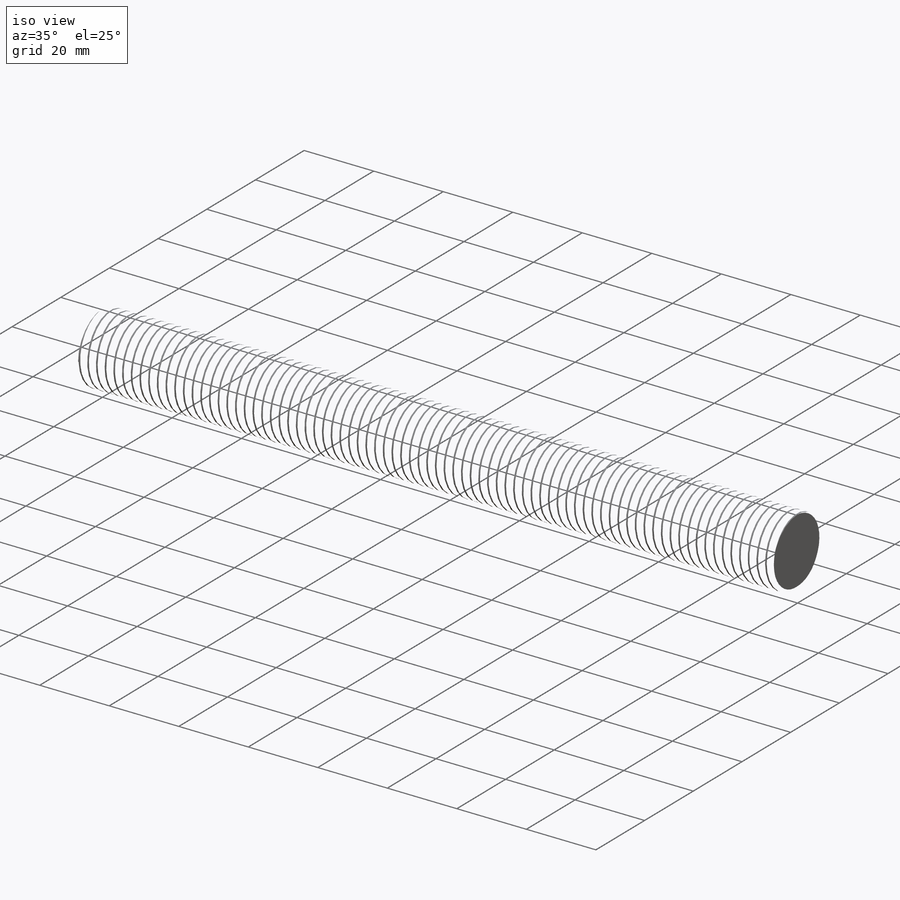
[diagram: iso view]
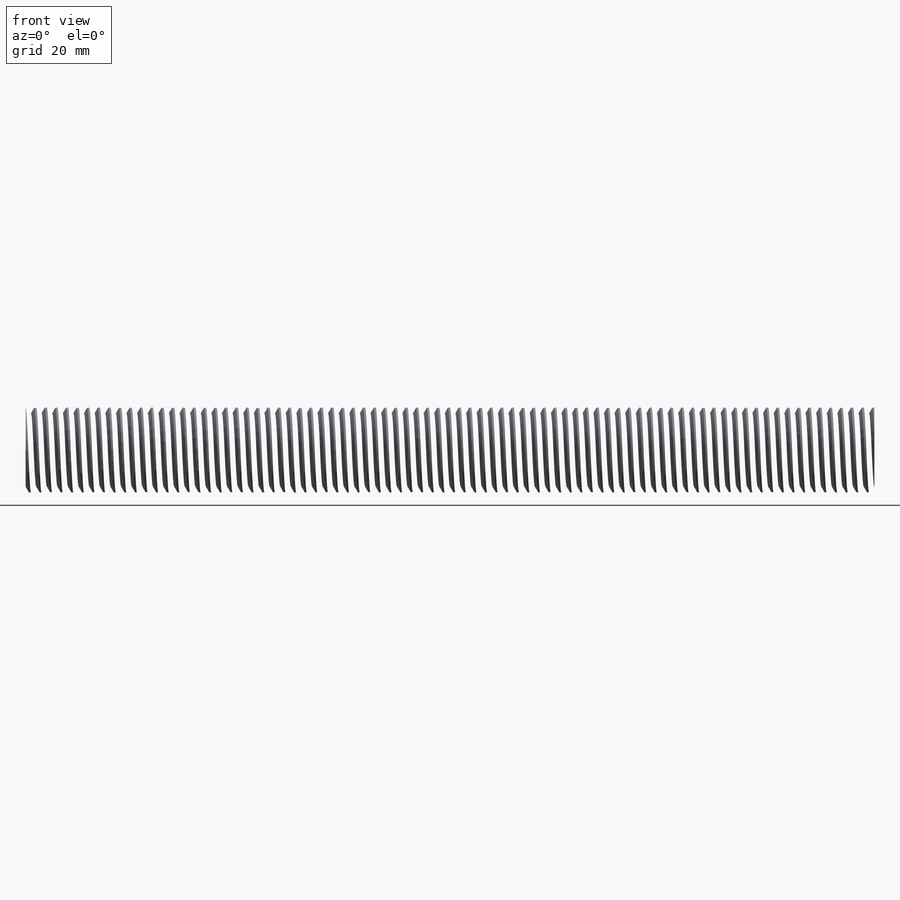
[diagram: front view]
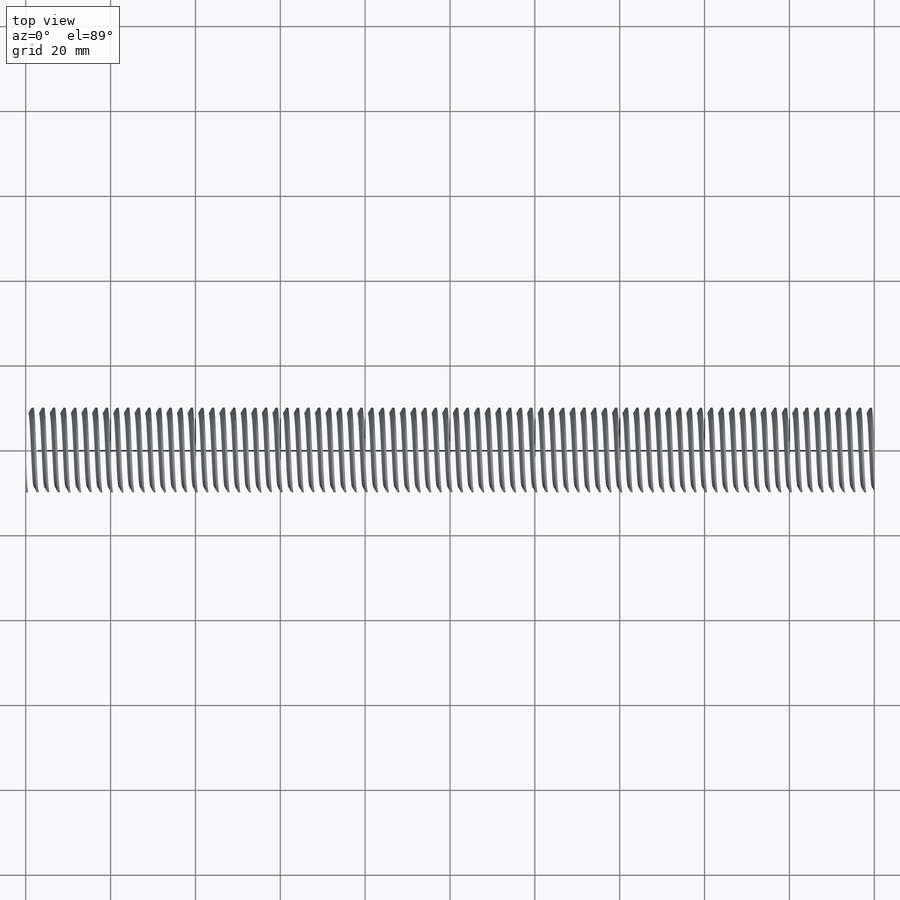
[diagram: top view]
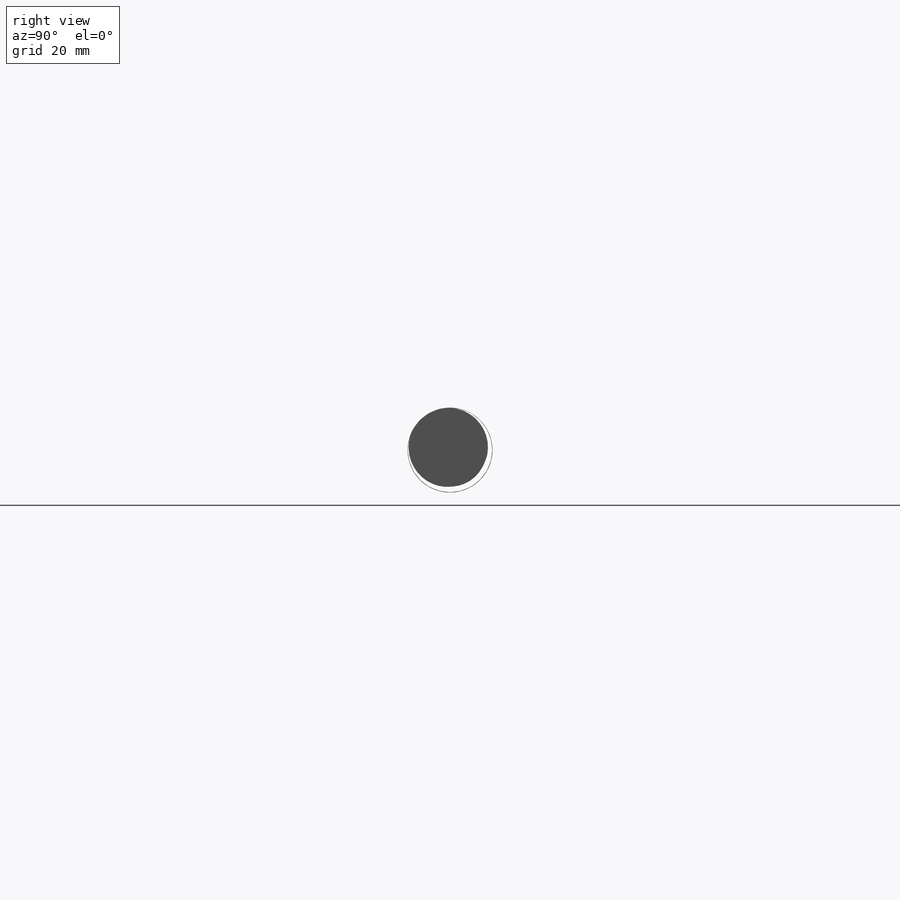
[diagram: right view]
SOLIDWORKS PART (.sldprt)
format: sldprt  version: not decoded by parser v0  size: 1,664,512 bytes
history: native  units: mm
features: plane x3, sketch x3, material x1, extrude x1, helix x1, sweep x1 (+8 scaffold rows collapsed)
feature tree (18):
  scaffold x8  (default folders/planes/origin — collapsed)
  material  "Matériau <non spécifié>"
  plane  "Plan de face"
  plane  "Plan de dessus"
  plane  "Plan de droite"
  sketch  "Esquisse1"  dims[D1=20.0mm]
  extrude  "Boss.-Extru.1"  Depth=200mm
  sketch  "Esquisse3"  dims[D1=21.0825mm]
  helix  "Hélice/Spirale1"  Pitch=202.5mm
  sketch  "Esquisse6"  dims[c1.D1=~0.923551mm c1.ANGLE1=30.0deg c1.D2=~1.241636mm c2.D2=30.0deg c2.D3=1.0825mm c2.D4=~0.135313mm c2.D5=~0.235618mm c3.D4=~0.135313mm c3.D5=~1.290799mm c3.D3=1.08mm c4.D5=~1.287916mm c4.D6=~0.701661mm c4.D7=~0.701661mm c4.D3=2.5mm c4.D4=5.0mm c5.D5=2.5mm c5.D3=8.0mm c5.D1=~2.058054mm c5.ANGLE=30.0deg c6.D1=~0.884194mm c7.D1=30.0deg c8.D1=~3.67975mm c8.ANGLE=60.0deg c9.D1=1.0825mm c9.D2=~1.249963mm c10.D1=~7.286777mm c10.ANGLE2=60.0deg c11.D1=10.0mm c11.D2=~8.646875mm c11.D3=2.165mm c11.D4=~0.150016mm]
  sweep  "Enlèvement de matière-Balayage1"
decode coverage: 5 of 6 modeling features carry decoded parameters
note: ~ marks probable driven/reference dimensions
note: suppression state not decoded; provenance and decode notes live in map.json
